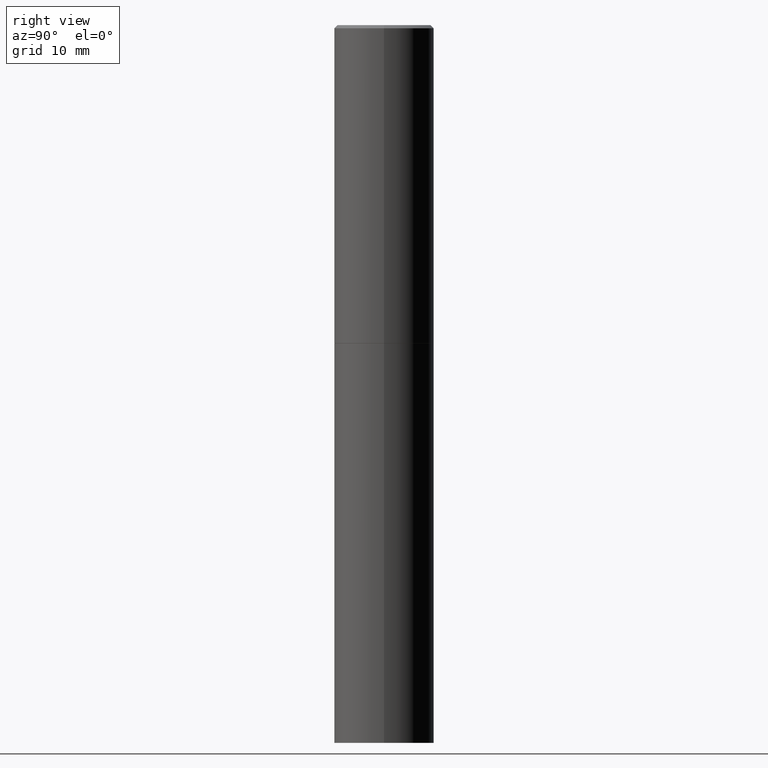
[diagram: clean part render]
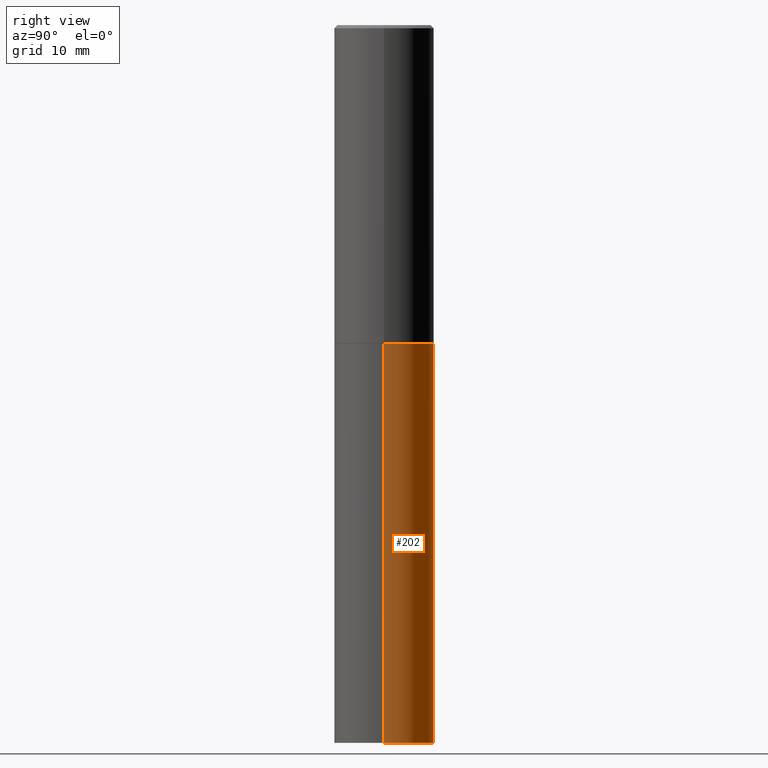
[diagram: same view with one face highlighted and labeled with its STEP entity id]
A machine part, right view. The second image highlights one B-rep face of the part: STEP entity #202.
In plain terms, the highlighted cylindrical surface (partial cylindrical patch) has radius 7.9997 mm, axis along (-0, 0, 1).
Its self-contained STEP definition (entity closure, byte-faithful):
#2 = CARTESIAN_POINT ( 'NONE',  ( 0.3149500000000000077, -2.199284095337289871E-15, 1.535751875536930130E-29 ) ) ;
#6 = DIRECTION ( 'NONE',  ( -2.445468806185136597E-29, 3.491481338843145583E-15, 1.000000000000000000 ) ) ;
#14 = DIRECTION ( 'NONE',  ( 1.000000000000000000, -6.982962677686266711E-15, 4.876176775795936353E-29 ) ) ;
#17 = CYLINDRICAL_SURFACE ( 'NONE', #159, 0.3149500000000000077 ) ;
#38 = EDGE_CURVE ( 'NONE', #357, #174, #156, .T. ) ;
#55 = ORIENTED_EDGE ( 'NONE', *, *, #38, .F. ) ;
#64 = CIRCLE ( 'NONE', #293, 0.3149500000000000077 ) ;
#101 = EDGE_CURVE ( 'NONE', #174, #366, #119, .T. ) ;
#107 = ORIENTED_EDGE ( 'NONE', *, *, #350, .T. ) ;
#117 = ORIENTED_EDGE ( 'NONE', *, *, #101, .F. ) ;
#119 = CIRCLE ( 'NONE', #160, 0.3149500000000000077 ) ;
#137 = DIRECTION ( 'NONE',  ( -2.445468806185136877E-29, 3.491481338843145188E-15, 1.000000000000000000 ) ) ;
#138 = DIRECTION ( 'NONE',  ( -2.445468806185136597E-29, 3.491481338843145583E-15, 1.000000000000000000 ) ) ;
#141 = CARTESIAN_POINT ( 'NONE',  ( -0.3149500000000000077, -9.171433798728249845E-15, -2.007899999999999352 ) ) ;
#143 = DIRECTION ( 'NONE',  ( 1.000000000000000000, -6.982962677686269866E-15, 0.000000000000000000 ) ) ;
#144 = VECTOR ( 'NONE', #282, 39.37007874015748143 ) ;
#153 = VECTOR ( 'NONE', #137, 39.37007874015748143 ) ;
#156 = LINE ( 'NONE', #2, #144 ) ;
#159 = AXIS2_PLACEMENT_3D ( 'NONE', #196, #319, #14 ) ;
#160 = AXIS2_PLACEMENT_3D ( 'NONE', #165, #138, #143 ) ;
#165 = CARTESIAN_POINT ( 'NONE',  ( 4.910256815939134188E-29, -7.010545380263150133E-15, -2.007899999999999352 ) ) ;
#167 = VERTEX_POINT ( 'NONE', #318 ) ;
#174 = VERTEX_POINT ( 'NONE', #241 ) ;
#196 = CARTESIAN_POINT ( 'NONE',  ( 0.000000000000000000, 0.000000000000000000, 0.000000000000000000 ) ) ;
#202 = ADVANCED_FACE ( 'NONE', ( #270 ), #17, .T. ) ;
#203 = ORIENTED_EDGE ( 'NONE', *, *, #207, .T. ) ;
#207 = EDGE_CURVE ( 'NONE', #167, #366, #220, .T. ) ;
#220 = LINE ( 'NONE', #294, #153 ) ;
#241 = CARTESIAN_POINT ( 'NONE',  ( 0.3149500000000000077, -9.209829475600440793E-15, -2.007899999999999352 ) ) ;
#258 = EDGE_LOOP ( 'NONE', ( #107, #203, #117, #55 ) ) ;
#263 = CARTESIAN_POINT ( 'NONE',  ( 0.3149500000000000077, -1.800731500508351534E-14, -4.527599999999999625 ) ) ;
#267 = CARTESIAN_POINT ( 'NONE',  ( 1.107210456688382298E-28, -1.580803090974622389E-14, -4.527599999999999625 ) ) ;
#270 = FACE_OUTER_BOUND ( 'NONE', #258, .T. ) ;
#282 = DIRECTION ( 'NONE',  ( -2.445468806185136877E-29, 3.491481338843145188E-15, 1.000000000000000000 ) ) ;
#293 = AXIS2_PLACEMENT_3D ( 'NONE', #267, #6, #341 ) ;
#294 = CARTESIAN_POINT ( 'NONE',  ( -0.3149500000000000077, 2.237854346276435590E-15, -1.549218606675782676E-29 ) ) ;
#318 = CARTESIAN_POINT ( 'NONE',  ( -0.3149500000000000077, -9.171433798728249845E-15, -4.527599999999999625 ) ) ;
#319 = DIRECTION ( 'NONE',  ( -2.445468806185136597E-29, 3.491481338843145583E-15, 1.000000000000000000 ) ) ;
#341 = DIRECTION ( 'NONE',  ( 1.000000000000000000, -6.982962677686269866E-15, 0.000000000000000000 ) ) ;
#350 = EDGE_CURVE ( 'NONE', #357, #167, #64, .T. ) ;
#357 = VERTEX_POINT ( 'NONE', #263 ) ;
#366 = VERTEX_POINT ( 'NONE', #141 ) ;